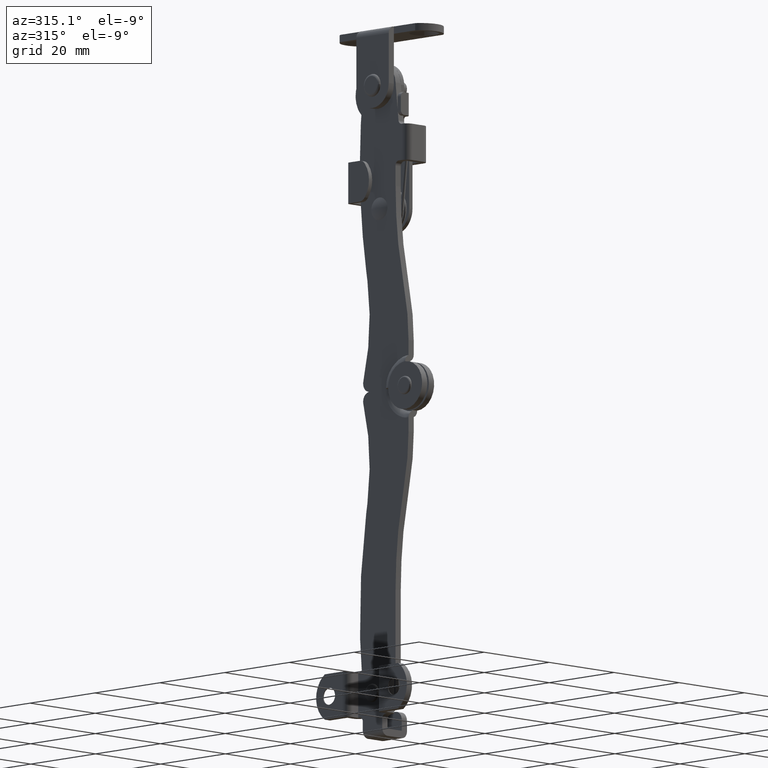
[diagram: clean part render]
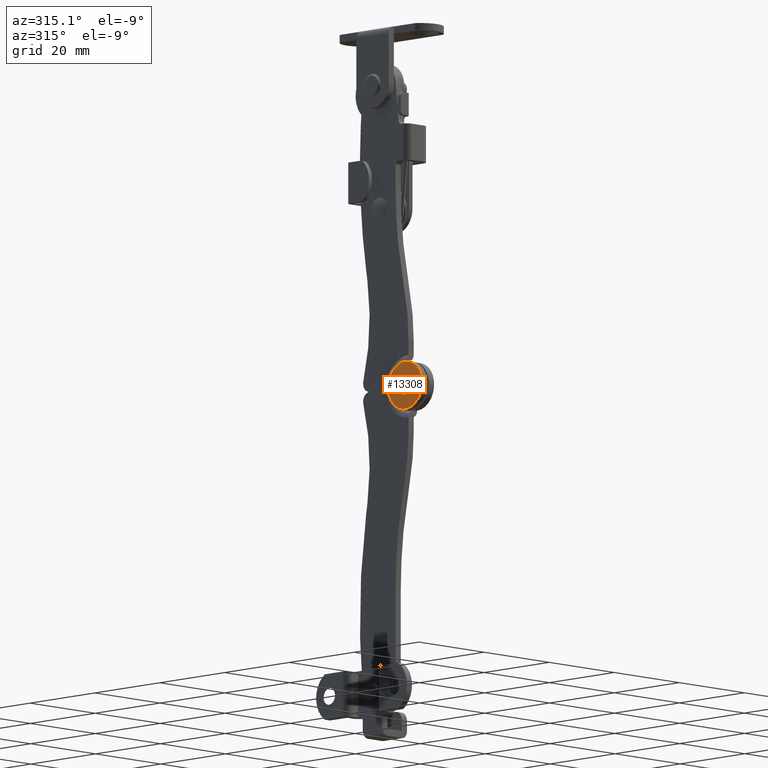
[diagram: same view with one face highlighted and labeled with its STEP entity id]
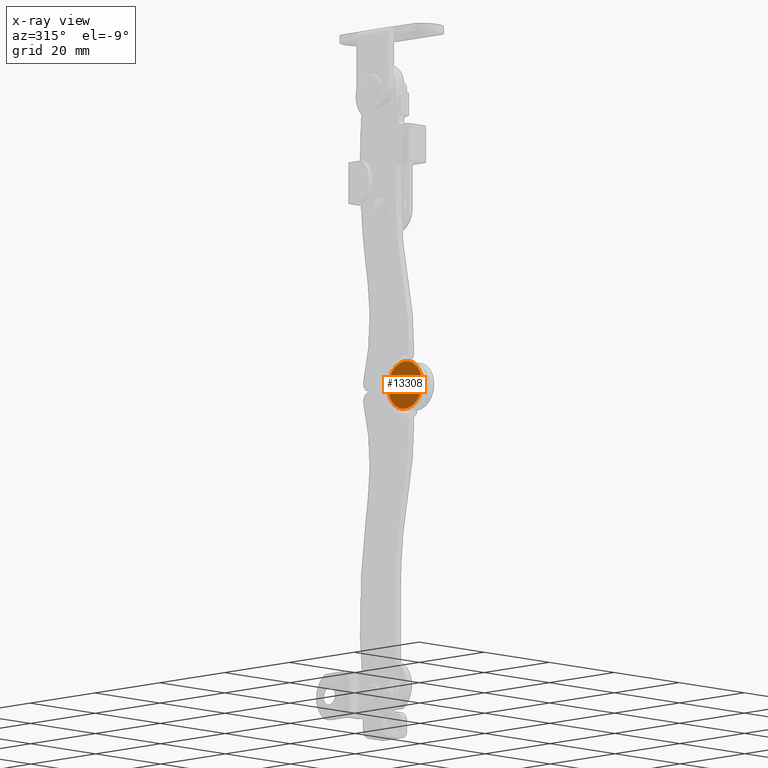
[diagram: x-ray of the same camera — body ghosted, the highlighted face saturated]
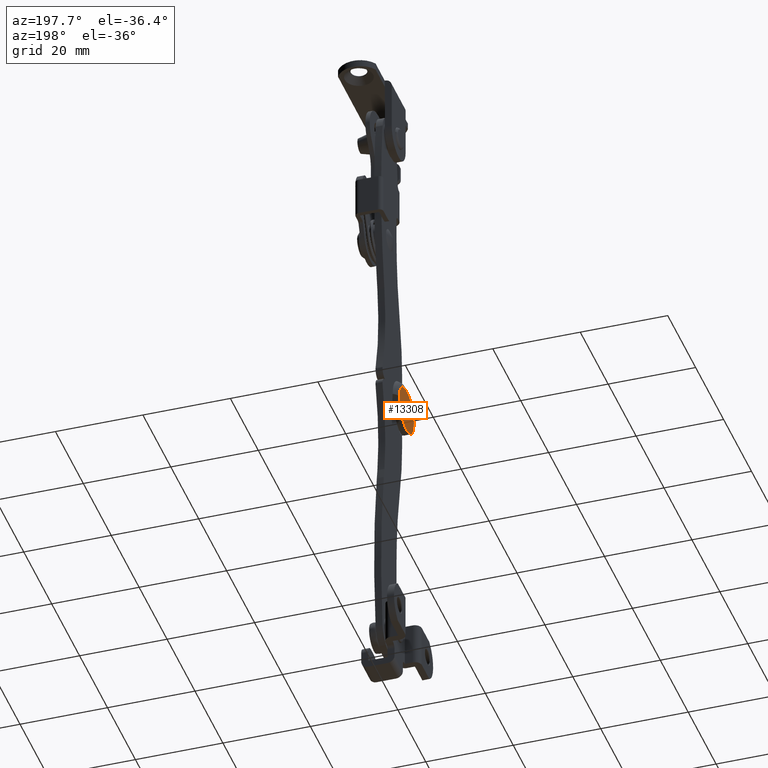
[diagram: same view with one face highlighted and labeled with its STEP entity id]
A machine part, auxiliary view. The second image highlights one B-rep face of the part: STEP entity #13308.
The next image is the same camera in x-ray: the body ghosted, the highlighted face saturated — about 0% of this face is hidden behind the body in this view.
A second angle (auxiliary view) of the same face is appended — the face is thin or edge-on in the first view.
In plain terms, the highlighted face is a freeform B-spline surface patch.
Its self-contained STEP definition (entity closure, byte-faithful):
#12739=CARTESIAN_POINT('',(-2.650000000000040,-16.820354299136870,-1.080945363899382));
#12740=VERTEX_POINT('',#12739);
#12746=CARTESIAN_POINT('',(-2.650000000000040,-17.999999999999449,-1.599999999940683));
#12747=VERTEX_POINT('',#12746);
#12748=CARTESIAN_POINT('',(-2.650000000000040,-16.820354299136870,-1.080945363899382));
#12749=CARTESIAN_POINT('',(-2.650000000000043,-16.950922560441491,-1.223689737508418));
#12750=CARTESIAN_POINT('',(-2.650000000000032,-17.309579561673711,-1.494617782195329));
#12751=CARTESIAN_POINT('',(-2.650000000000045,-17.751179992450179,-1.600477637652094));
#12752=CARTESIAN_POINT('',(-2.650000000000040,-17.999999999999449,-1.599999999940683));
#12753=B_SPLINE_CURVE_WITH_KNOTS('',3,(#12748,#12749,#12750,#12751,#12752),.UNSPECIFIED.,.F.,.U.,(4,1,4),(0.000000179140811,0.580388338209401,1.326599898060526),.UNSPECIFIED.);
#12754=EDGE_CURVE('',#12740,#12747,#12753,.T.);
#12756=CARTESIAN_POINT('',(-2.650000000000040,-19.599999999976301,0.000008607107524));
#12757=VERTEX_POINT('',#12756);
#12758=CARTESIAN_POINT('',(-2.650000000000040,-17.999999999999449,-1.599999999940683));
#12759=CARTESIAN_POINT('',(-2.650000000000040,-18.288136533335869,-1.600772698058703));
#12760=CARTESIAN_POINT('',(-2.650000000000040,-18.784744048659650,-1.461958185331045));
#12761=CARTESIAN_POINT('',(-2.650000000000040,-19.239410409929391,-1.049610412854342));
#12762=CARTESIAN_POINT('',(-2.650000000000038,-19.523386954436919,-0.575691328394986));
#12763=CARTESIAN_POINT('',(-2.650000000000041,-19.600392413122510,-0.235702227810119));
#12764=CARTESIAN_POINT('',(-2.650000000000040,-19.599999999976301,0.000008607107524));
#12765=B_SPLINE_CURVE_WITH_KNOTS('',3,(#12758,#12759,#12760,#12761,#12762,#12763,#12764),.UNSPECIFIED.,.F.,.U.,(4,1,1,1,4),(0.000000467127929,0.864062121765043,1.492372437407806,1.806586160750706,2.513531064830447),.UNSPECIFIED.);
#12766=EDGE_CURVE('',#12747,#12757,#12765,.T.);
#12768=CARTESIAN_POINT('',(-2.650000000000040,-19.179645700862029,1.080945364018017));
#12769=VERTEX_POINT('',#12768);
#12770=CARTESIAN_POINT('',(-2.650000000000040,-19.599999999976301,0.000008607107524));
#12771=CARTESIAN_POINT('',(-2.650000000000042,-19.600092115130209,0.173095359954012));
#12772=CARTESIAN_POINT('',(-2.650000000000038,-19.535162424760081,0.568653834103295));
#12773=CARTESIAN_POINT('',(-2.650000000000040,-19.330248409429430,0.917047415127078));
#12774=CARTESIAN_POINT('',(-2.650000000000040,-19.179645700862029,1.080945364018017));
#12775=B_SPLINE_CURVE_WITH_KNOTS('',3,(#12770,#12771,#12772,#12773,#12774),.UNSPECIFIED.,.F.,.U.,(4,1,4),(0.000000204879100,0.519296663032167,1.186921699062373),.UNSPECIFIED.);
#12776=EDGE_CURVE('',#12757,#12769,#12775,.T.);
#12815=CARTESIAN_POINT('',(-2.650000000000040,-17.999999999999449,1.600000000059317));
#12816=VERTEX_POINT('',#12815);
#12817=CARTESIAN_POINT('',(-2.650000000000040,-19.179645700862029,1.080945364018017));
#12818=CARTESIAN_POINT('',(-2.650000000000039,-19.049059936285119,1.223682796210458));
#12819=CARTESIAN_POINT('',(-2.650000000000039,-18.690442291318188,1.494633924538229));
#12820=CARTESIAN_POINT('',(-2.650000000000040,-18.248809044966421,1.600469642938106));
#12821=CARTESIAN_POINT('',(-2.650000000000040,-17.999999999999449,1.600000000059317));
#12822=B_SPLINE_CURVE_WITH_KNOTS('',3,(#12817,#12818,#12819,#12820,#12821),.UNSPECIFIED.,.F.,.U.,(4,1,4),(0.000000179140732,0.580388338209373,1.326599898060525),.UNSPECIFIED.);
#12823=EDGE_CURVE('',#12769,#12816,#12822,.T.);
#12825=CARTESIAN_POINT('',(-2.650000000000040,-16.400000000022601,-0.000008606988890));
#12826=VERTEX_POINT('',#12825);
#12827=CARTESIAN_POINT('',(-2.650000000000040,-17.999999999999449,1.600000000059317));
#12828=CARTESIAN_POINT('',(-2.650000000000040,-17.790525947521530,1.600213408721780));
#12829=CARTESIAN_POINT('',(-2.650000000000041,-17.398028152834030,1.521747897531269));
#12830=CARTESIAN_POINT('',(-2.650000000000040,-16.859033335550830,1.180815416536701));
#12831=CARTESIAN_POINT('',(-2.650000000000039,-16.488469579005169,0.654458697159828));
#12832=CARTESIAN_POINT('',(-2.650000000000041,-16.399850310652290,0.209430115929836));
#12833=CARTESIAN_POINT('',(-2.650000000000040,-16.400000000022601,-0.000008606988890));
#12834=B_SPLINE_CURVE_WITH_KNOTS('',3,(#12827,#12828,#12829,#12830,#12831,#12832,#12833),.UNSPECIFIED.,.F.,.U.,(4,1,1,1,4),(0.000000467128634,0.628383114658354,1.178233924841196,1.885148428393649,2.513531064830443),.UNSPECIFIED.);
#12835=EDGE_CURVE('',#12816,#12826,#12834,.T.);
#12837=CARTESIAN_POINT('',(-2.650000000000040,-16.400000000022601,-0.000008606988890));
#12838=CARTESIAN_POINT('',(-2.650000000000042,-16.399924011268791,-0.173085661859976));
#12839=CARTESIAN_POINT('',(-2.650000000000035,-16.464801983476779,-0.568679937135226));
#12840=CARTESIAN_POINT('',(-2.650000000000044,-16.669775132287171,-0.917029574370077));
#12841=CARTESIAN_POINT('',(-2.650000000000040,-16.820354299136870,-1.080945363899382));
#12842=B_SPLINE_CURVE_WITH_KNOTS('',3,(#12837,#12838,#12839,#12840,#12841),.UNSPECIFIED.,.F.,.U.,(4,1,4),(0.000000204879158,0.519296663032180,1.186921699062366),.UNSPECIFIED.);
#12843=EDGE_CURVE('',#12826,#12740,#12842,.T.);
#13119=CARTESIAN_POINT('',(-2.650000000000040,-17.999999999999449,5.250015887777810));
#13120=VERTEX_POINT('',#13119);
#13168=CARTESIAN_POINT('',(-2.650000000000040,-12.749984112251520,0.000000603031654));
#13169=VERTEX_POINT('',#13168);
#13243=CARTESIAN_POINT('',(-2.650000000000040,-21.712302494485591,-3.712302820178901));
#13244=VERTEX_POINT('',#13243);
#13245=CARTESIAN_POINT('',(-2.650000000000040,-17.999999999999449,5.250015887777810));
#13246=CARTESIAN_POINT('',(-2.650000000000045,-18.515427214843982,5.250205934918601));
#13247=CARTESIAN_POINT('',(-2.650000000000026,-19.546169277671179,5.097044736954195));
#13248=CARTESIAN_POINT('',(-2.650000000000047,-20.812015648866041,4.498418503956560));
#13249=CARTESIAN_POINT('',(-2.650000000000038,-21.760663290626741,3.714707487232928));
#13250=CARTESIAN_POINT('',(-2.650000000000042,-22.471549205404290,2.832140228071033));
#13251=CARTESIAN_POINT('',(-2.650000000000048,-22.972714297774289,1.813185654540664));
#13252=CARTESIAN_POINT('',(-2.650000000000039,-23.253082315263459,0.648456622657152));
#13253=CARTESIAN_POINT('',(-2.650000000000029,-23.272619280875411,-0.616759441020847));
#13254=CARTESIAN_POINT('',(-2.650000000000059,-22.882436506452368,-2.195402156803396));
#13255=CARTESIAN_POINT('',(-2.650000000000027,-22.214130708142989,-3.211681979395276));
#13256=CARTESIAN_POINT('',(-2.650000000000040,-21.712302494485591,-3.712302820178901));
#13257=B_SPLINE_CURVE_WITH_KNOTS('',3,(#13245,#13246,#13247,#13248,#13249,#13250,#13251,#13252,#13253,#13254,#13255,#13256),.UNSPECIFIED.,.F.,.U.,(4,1,1,1,1,1,1,1,1,4),(0.000001008702325,1.546253950421411,3.092550995000106,4.155674536306494,5.218792224866391,6.475008720610992,7.538077697388605,8.794432159427728,10.244089563015461,12.370197343900710),.UNSPECIFIED.);
#13258=EDGE_CURVE('',#13120,#13244,#13257,.T.);
#13260=CARTESIAN_POINT('',(-2.650000000000040,-21.712302494485591,-3.712302820178901));
#13261=CARTESIAN_POINT('',(-2.650000000000047,-21.257092978493201,-4.168312021695029));
#13262=CARTESIAN_POINT('',(-2.650000000000026,-20.311063934109090,-4.816188719825012));
#13263=CARTESIAN_POINT('',(-2.650000000000053,-18.810410003254241,-5.246364393302916));
#13264=CARTESIAN_POINT('',(-2.650000000000024,-17.577760951522720,-5.272665930826529));
#13265=CARTESIAN_POINT('',(-2.650000000000052,-16.306987336273231,-5.028186210565911));
#13266=CARTESIAN_POINT('',(-2.650000000000049,-15.214846185122980,-4.515723438853379));
#13267=CARTESIAN_POINT('',(-2.650000000000016,-14.189552603489821,-3.674133914066213));
#13268=CARTESIAN_POINT('',(-2.650000000000085,-13.510121306542491,-2.803518992464121));
#13269=CARTESIAN_POINT('',(-2.650000000000004,-12.915305283141130,-1.545948189546405));
#13270=CARTESIAN_POINT('',(-2.650000000000072,-12.749519842936490,-0.612134347067570));
#13271=CARTESIAN_POINT('',(-2.650000000000040,-12.749984112251520,0.000000603031654));
#13272=B_SPLINE_CURVE_WITH_KNOTS('',3,(#13260,#13261,#13262,#13263,#13264,#13265,#13266,#13267,#13268,#13269,#13270,#13271),.UNSPECIFIED.,.F.,.U.,(4,1,1,1,1,1,1,1,1,4),(0.000001010052399,1.932782829289437,3.382493234653916,4.638900308950784,5.605272098286793,7.248123386218111,8.214532893210794,9.567584065448029,10.534017153060359,12.370197486226610),.UNSPECIFIED.);
#13273=EDGE_CURVE('',#13244,#13169,#13272,.T.);
#13279=CARTESIAN_POINT('',(-2.650000000000000,-23.774451060203589,-5.774440200956870));
#13280=CARTESIAN_POINT('',(-2.650000000000000,-12.225509233168919,-5.774440200956870));
#13281=CARTESIAN_POINT('',(-2.650000000000000,-23.774451060203589,5.774490250247322));
#13282=CARTESIAN_POINT('',(-2.650000000000000,-12.225509233168919,5.774490250247322));
#13283=B_SPLINE_SURFACE_WITH_KNOTS('',1,1,((#13279,#13281),(#13280,#13282)),.UNSPECIFIED.,.F.,.F.,.U.,(2,2),(2,2),(0.0,11.548941827034669),(0.0,11.548930451204191),.UNSPECIFIED.);
#13284=ORIENTED_EDGE('',*,*,#13273,.F.);
#13285=ORIENTED_EDGE('',*,*,#13258,.F.);
#13286=CARTESIAN_POINT('',(-2.650000000000040,-12.749984112251520,0.000000603031654));
#13287=CARTESIAN_POINT('',(-2.650000000000046,-12.749259391685291,0.687333038597062));
#13288=CARTESIAN_POINT('',(-2.650000000000037,-12.981064897627490,1.846490923979212));
#13289=CARTESIAN_POINT('',(-2.650000000000041,-13.745161143645239,3.157057022765010));
#13290=CARTESIAN_POINT('',(-2.650000000000040,-14.548715827319381,4.000971115928953));
#13291=CARTESIAN_POINT('',(-2.650000000000036,-15.395564626165919,4.597385569063547));
#13292=CARTESIAN_POINT('',(-2.650000000000039,-16.539801710380221,5.104733352681778));
#13293=CARTESIAN_POINT('',(-2.650000000000040,-17.441595192536589,5.250289539344036));
#13294=CARTESIAN_POINT('',(-2.650000000000040,-17.999999999999449,5.250015887777810));
#13295=B_SPLINE_CURVE_WITH_KNOTS('',3,(#13286,#13287,#13288,#13289,#13290,#13291,#13292,#13293,#13294),.UNSPECIFIED.,.F.,.U.,(4,1,1,1,1,1,4),(0.000000357694880,2.061730450979298,3.479230866828920,4.509942861961109,5.540861822483370,6.571756204794940,8.246909173723664),.UNSPECIFIED.);
#13296=EDGE_CURVE('',#13169,#13120,#13295,.T.);
#13297=ORIENTED_EDGE('',*,*,#13296,.F.);
#13298=EDGE_LOOP('',(#13284,#13285,#13297));
#13299=FACE_OUTER_BOUND('',#13298,.T.);
#13300=ORIENTED_EDGE('',*,*,#12835,.F.);
#13301=ORIENTED_EDGE('',*,*,#12823,.F.);
#13302=ORIENTED_EDGE('',*,*,#12776,.F.);
#13303=ORIENTED_EDGE('',*,*,#12766,.F.);
#13304=ORIENTED_EDGE('',*,*,#12754,.F.);
#13305=ORIENTED_EDGE('',*,*,#12843,.F.);
#13306=EDGE_LOOP('',(#13300,#13301,#13302,#13303,#13304,#13305));
#13307=FACE_BOUND('',#13306,.T.);
#13308=ADVANCED_FACE('',(#13299,#13307),#13283,.F.);